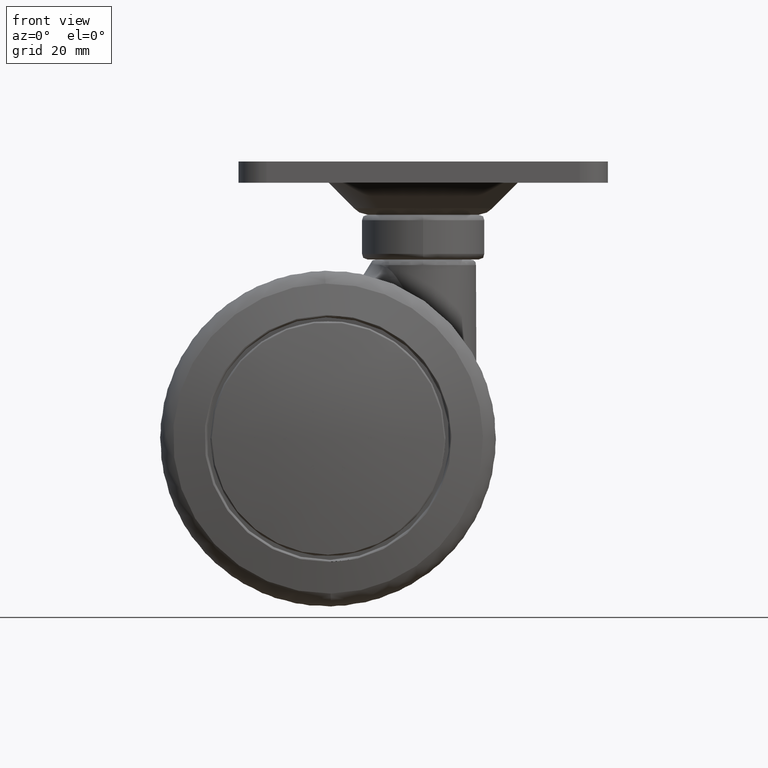
[diagram: clean part render]
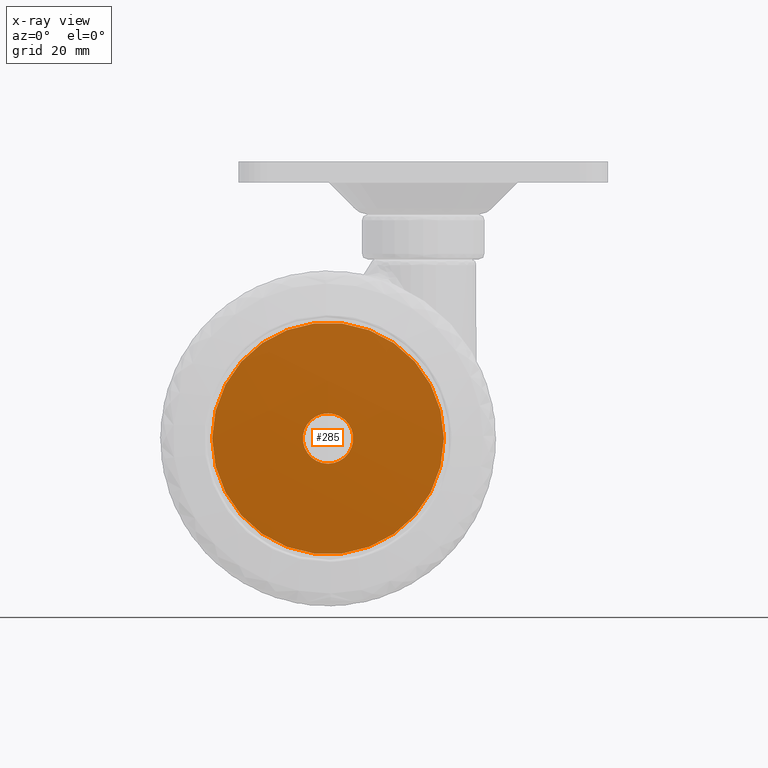
[diagram: x-ray — body ghosted, one internal face saturated and labeled with its STEP entity id]
A machine part, front view, then the same camera in x-ray: the body is ghosted and one INTERNAL B-rep face — a face not visible from any outside direction — is saturated and labeled: STEP entity #285.
In plain terms, the highlighted planar face has unit normal (0, 1, 0).
Its self-contained STEP definition (entity closure, byte-faithful):
#285=ADVANCED_FACE('',(#1616,#1617),#1615,.F.);
#1615=PLANE('',#5559);
#1616=FACE_OUTER_BOUND('',#5560,.T.);
#1617=FACE_BOUND('',#5561,.T.);
#5556=CARTESIAN_POINT('',(-4.76100000000E+01,2.15000000000E+01,4.30241420600E+01));
#5557=DIRECTION('',(-0.00000000000E+00,1.00000000000E+00,0.00000000000E+00));
#5558=DIRECTION('',(1.00000000000E+00,0.00000000000E+00,0.00000000000E+00));
#5559=AXIS2_PLACEMENT_3D('',#5556,#5557,#5558);
#5560=EDGE_LOOP('',(#6664,#6665));
#5561=EDGE_LOOP('',(#6666,#6667));
#6664=ORIENTED_EDGE('',*,*,#7096,.T.);
#6665=ORIENTED_EDGE('',*,*,#7097,.T.);
#6666=ORIENTED_EDGE('',*,*,#7098,.T.);
#6667=ORIENTED_EDGE('',*,*,#7099,.T.);
#7096=EDGE_CURVE('',#9069,#9070,#9071,.T.);
#7097=EDGE_CURVE('',#9070,#9069,#9077,.T.);
#7098=EDGE_CURVE('',#9083,#9084,#9085,.T.);
#7099=EDGE_CURVE('',#9084,#9083,#9091,.T.);
#9069=VERTEX_POINT('',#11088);
#9070=VERTEX_POINT('',#11089);
#9071=CIRCLE('',#11093,2.07000000000E+01);
#9077=CIRCLE('',#11097,2.07000000000E+01);
#9083=VERTEX_POINT('',#11098);
#9084=VERTEX_POINT('',#11099);
#9085=CIRCLE('',#11103,4.50000000000E+00);
#9091=CIRCLE('',#11107,4.50000000000E+00);
#11088=CARTESIAN_POINT('',(2.07000000000E+01,2.15000000000E+01,-4.87041830175E-16));
#11089=CARTESIAN_POINT('',(-2.07000000000E+01,2.15000000000E+01,-2.36847578587E-15));
#11090=CARTESIAN_POINT('',(0.00000000000E+00,2.15000000000E+01,-5.05495253985E-16));
#11091=DIRECTION('',(0.00000000000E+00,-1.00000000000E+00,-0.00000000000E+00));
#11092=DIRECTION('',(1.00000000000E+00,-0.00000000000E+00,1.23352105132E-16));
#11093=AXIS2_PLACEMENT_3D('',#11090,#11091,#11092);
#11094=CARTESIAN_POINT('',(0.00000000000E+00,2.15000000000E+01,-5.05495253985E-16));
#11095=DIRECTION('',(0.00000000000E+00,-1.00000000000E+00,-0.00000000000E+00));
#11096=DIRECTION('',(1.00000000000E+00,-0.00000000000E+00,1.23352105132E-16));
#11097=AXIS2_PLACEMENT_3D('',#11094,#11095,#11096);
#11098=CARTESIAN_POINT('',(0.00000000000E+00,2.15000000000E+01,4.50000000000E+00));
#11099=CARTESIAN_POINT('',(2.96059473233E-16,2.15000000000E+01,-4.50000000000E+00));
#11100=CARTESIAN_POINT('',(0.00000000000E+00,2.15000000000E+01,0.00000000000E+00));
#11101=DIRECTION('',(0.00000000000E+00,1.00000000000E+00,0.00000000000E+00));
#11102=DIRECTION('',(-1.22460635382E-16,0.00000000000E+00,1.00000000000E+00));
#11103=AXIS2_PLACEMENT_3D('',#11100,#11101,#11102);
#11104=CARTESIAN_POINT('',(0.00000000000E+00,2.15000000000E+01,0.00000000000E+00));
#11105=DIRECTION('',(0.00000000000E+00,1.00000000000E+00,0.00000000000E+00));
#11106=DIRECTION('',(-1.22460635382E-16,0.00000000000E+00,1.00000000000E+00));
#11107=AXIS2_PLACEMENT_3D('',#11104,#11105,#11106);